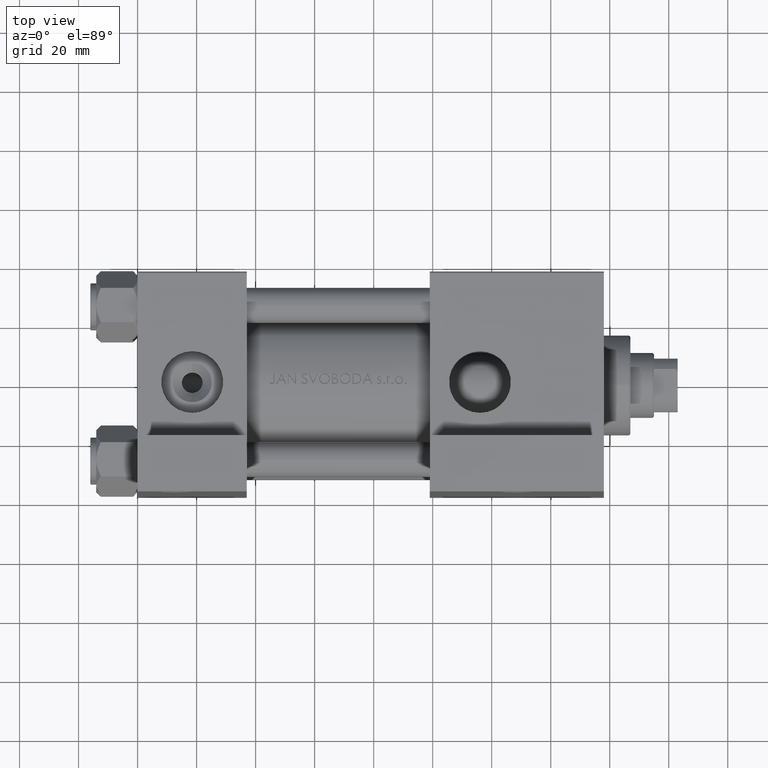
[diagram: clean part render]
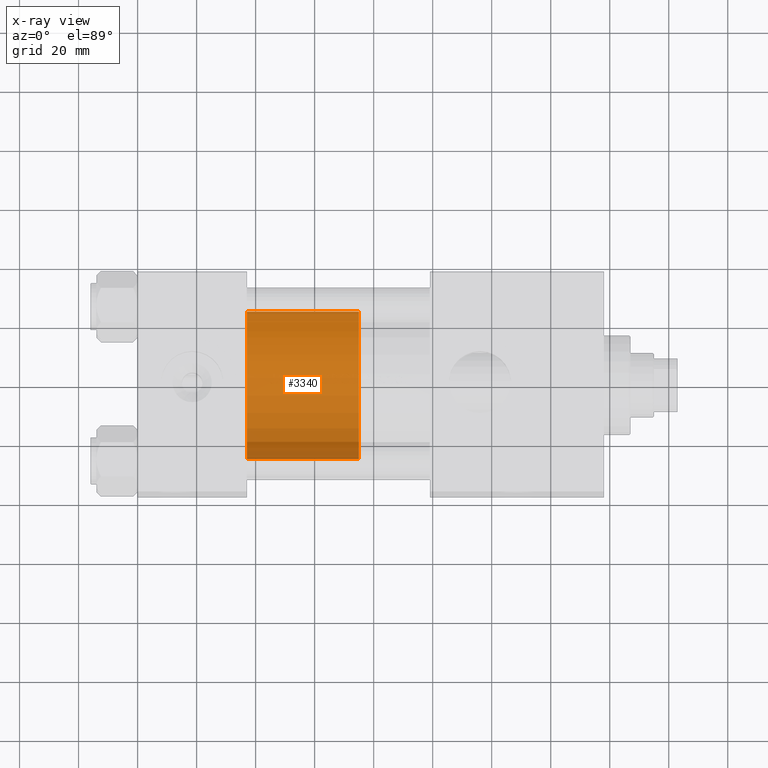
[diagram: x-ray — body ghosted, one internal face saturated and labeled with its STEP entity id]
A machine part, top view, then the same camera in x-ray: the body is ghosted and one INTERNAL B-rep face — a face not visible from any outside direction — is saturated and labeled: STEP entity #3340.
In plain terms, the highlighted cylindrical surface (partial cylindrical patch) has radius 25 mm, axis along (-1, 0, 0).
Its self-contained STEP definition (entity closure, byte-faithful):
#225 = VERTEX_POINT ( 'NONE', #2710 ) ;
#1674 = CARTESIAN_POINT ( 'NONE',  ( 25.00000000000000000, 3.061616997868383043E-15, 0.000000000000000000 ) ) ;
#2710 = CARTESIAN_POINT ( 'NONE',  ( -25.00000000000000000, 0.000000000000000000, 38.00000000000000000 ) ) ;
#3340 = ADVANCED_FACE ( 'NONE', ( #24035 ), #34764, .T. ) ;
#3511 = CARTESIAN_POINT ( 'NONE',  ( -25.00000000000000000, 0.000000000000000000, 38.00000000000000000 ) ) ;
#3829 = DIRECTION ( 'NONE',  ( 0.000000000000000000, 0.000000000000000000, 1.000000000000000000 ) ) ;
#4252 = ORIENTED_EDGE ( 'NONE', *, *, #6771, .T. ) ;
#5485 = EDGE_CURVE ( 'NONE', #29299, #225, #29986, .T. ) ;
#6771 = EDGE_CURVE ( 'NONE', #24686, #40333, #37992, .T. ) ;
#7010 = LINE ( 'NONE', #3511, #41550 ) ;
#7734 = CARTESIAN_POINT ( 'NONE',  ( -25.00000000000000000, 0.000000000000000000, 0.000000000000000000 ) ) ;
#8418 = EDGE_CURVE ( 'NONE', #29299, #24686, #13745, .T. ) ;
#8551 = EDGE_LOOP ( 'NONE', ( #24571, #10246, #4252, #39105 ) ) ;
#9344 = DIRECTION ( 'NONE',  ( 0.000000000000000000, 0.000000000000000000, 1.000000000000000000 ) ) ;
#10246 = ORIENTED_EDGE ( 'NONE', *, *, #8418, .T. ) ;
#11802 = DIRECTION ( 'NONE',  ( 1.000000000000000000, 0.000000000000000000, 0.000000000000000000 ) ) ;
#13745 = LINE ( 'NONE', #46883, #29946 ) ;
#20537 = CARTESIAN_POINT ( 'NONE',  ( 0.000000000000000000, 0.000000000000000000, 38.00000000000000000 ) ) ;
#20789 = DIRECTION ( 'NONE',  ( -1.000000000000000000, 0.000000000000000000, 0.000000000000000000 ) ) ;
#21525 = DIRECTION ( 'NONE',  ( -0.000000000000000000, -0.000000000000000000, -1.000000000000000000 ) ) ;
#24035 = FACE_OUTER_BOUND ( 'NONE', #8551, .T. ) ;
#24571 = ORIENTED_EDGE ( 'NONE', *, *, #5485, .F. ) ;
#24686 = VERTEX_POINT ( 'NONE', #1674 ) ;
#27939 = DIRECTION ( 'NONE',  ( -0.000000000000000000, -0.000000000000000000, -1.000000000000000000 ) ) ;
#29299 = VERTEX_POINT ( 'NONE', #38332 ) ;
#29946 = VECTOR ( 'NONE', #27939, 1000.000000000000000 ) ;
#29986 = CIRCLE ( 'NONE', #45871, 25.00000000000000000 ) ;
#31863 = AXIS2_PLACEMENT_3D ( 'NONE', #20537, #21525, #20789 ) ;
#33674 = DIRECTION ( 'NONE',  ( -0.000000000000000000, -0.000000000000000000, -1.000000000000000000 ) ) ;
#34764 = CYLINDRICAL_SURFACE ( 'NONE', #31863, 25.00000000000000000 ) ;
#37992 = CIRCLE ( 'NONE', #41858, 25.00000000000000000 ) ;
#38332 = CARTESIAN_POINT ( 'NONE',  ( 25.00000000000000000, 3.061616997868383043E-15, 38.00000000000000000 ) ) ;
#39105 = ORIENTED_EDGE ( 'NONE', *, *, #41280, .F. ) ;
#40333 = VERTEX_POINT ( 'NONE', #7734 ) ;
#41280 = EDGE_CURVE ( 'NONE', #225, #40333, #7010, .T. ) ;
#41550 = VECTOR ( 'NONE', #33674, 1000.000000000000000 ) ;
#41858 = AXIS2_PLACEMENT_3D ( 'NONE', #46174, #3829, #11802 ) ;
#45871 = AXIS2_PLACEMENT_3D ( 'NONE', #47207, #9344, #47464 ) ;
#46174 = CARTESIAN_POINT ( 'NONE',  ( 0.000000000000000000, 0.000000000000000000, 0.000000000000000000 ) ) ;
#46883 = CARTESIAN_POINT ( 'NONE',  ( 25.00000000000000000, 3.061616997868383043E-15, 38.00000000000000000 ) ) ;
#47207 = CARTESIAN_POINT ( 'NONE',  ( 0.000000000000000000, 0.000000000000000000, 38.00000000000000000 ) ) ;
#47464 = DIRECTION ( 'NONE',  ( 1.000000000000000000, 0.000000000000000000, 0.000000000000000000 ) ) ;